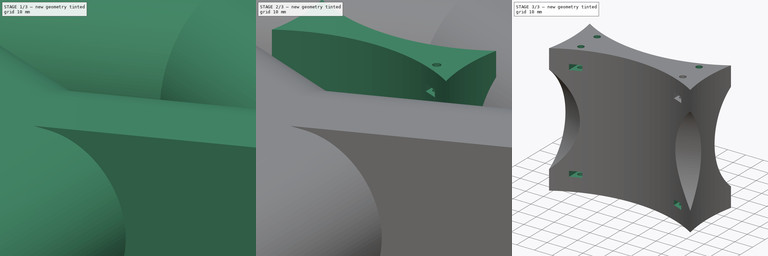
[diagram: build sequence overview — one tinted view per stage of 3, left to right]
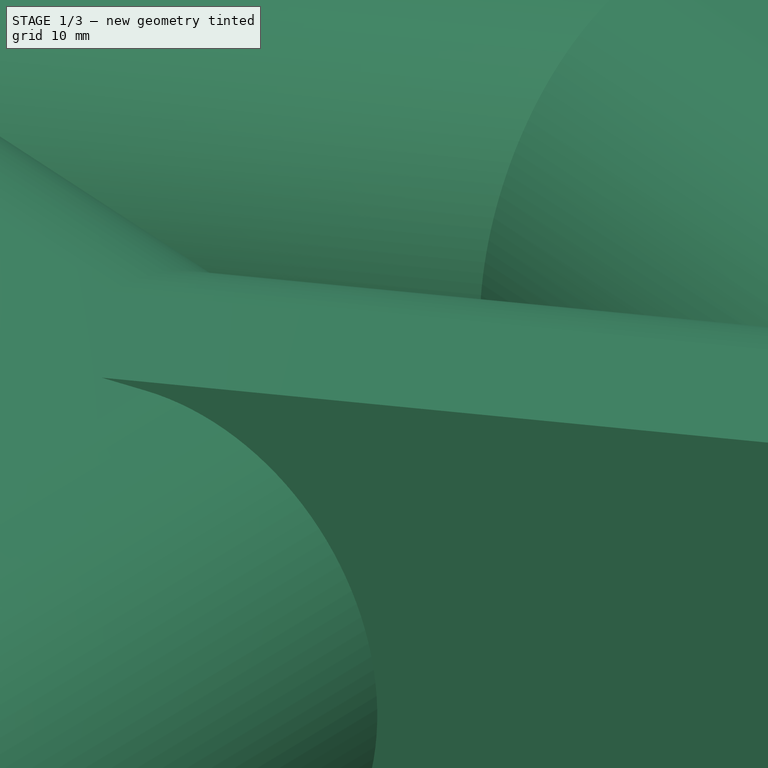
[diagram: stage 1 of 3 — iso view after this stage's code; geometry added in this stage tinted green]
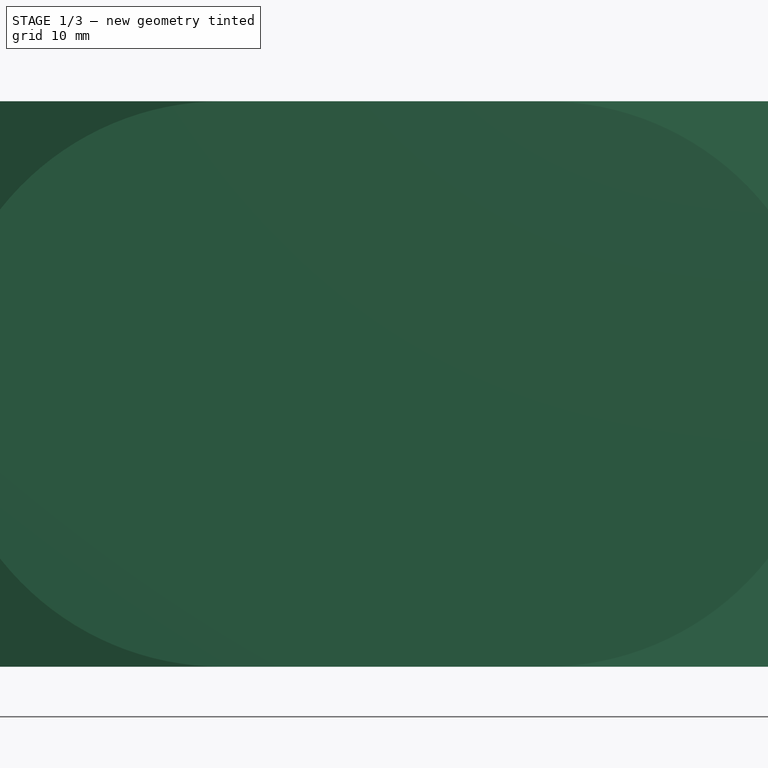
[diagram: stage 1 of 3 — front view after this stage's code; geometry added in this stage tinted green]
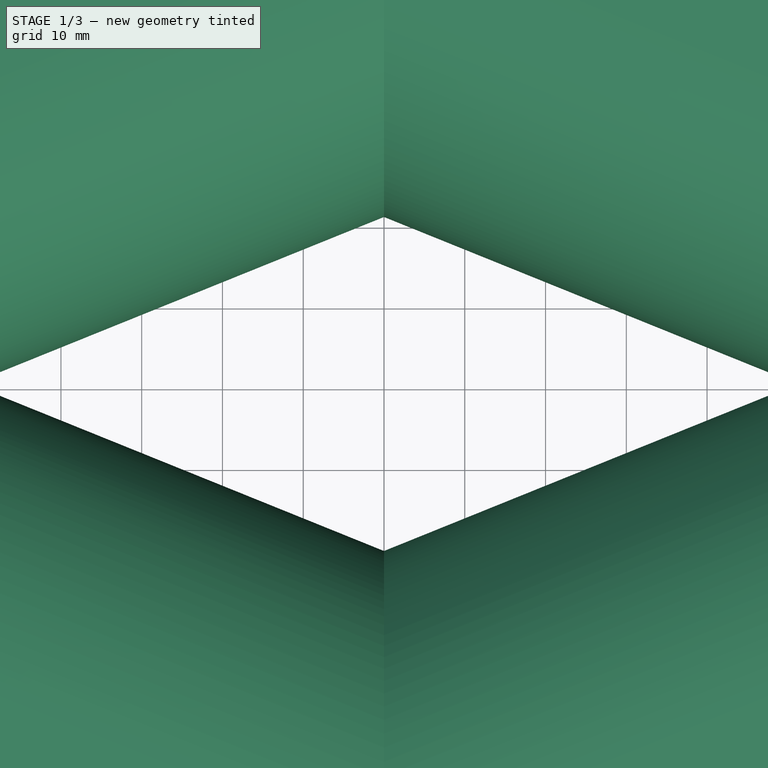
[diagram: stage 1 of 3 — top view after this stage's code; geometry added in this stage tinted green]
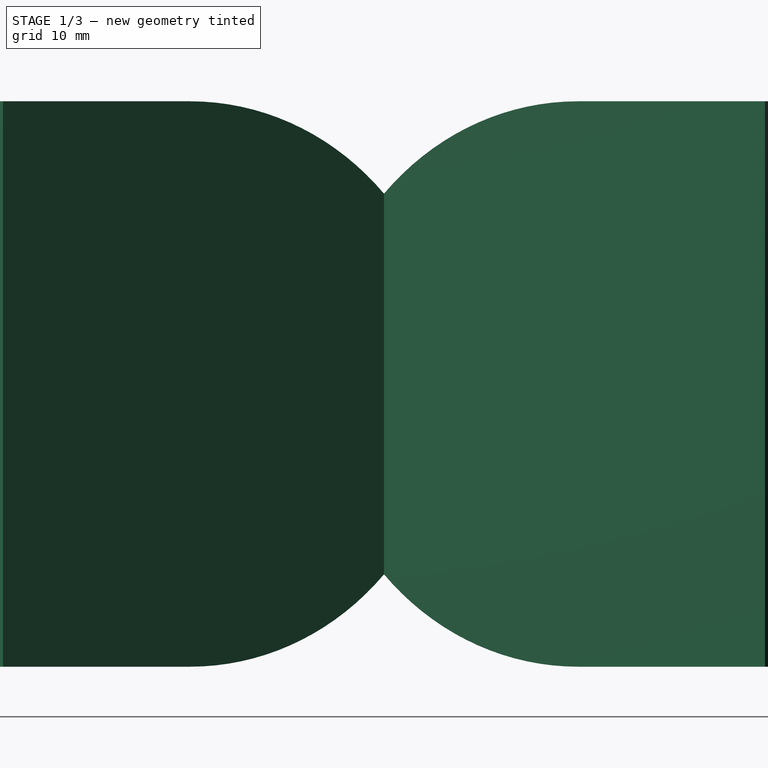
[diagram: stage 1 of 3 — right view after this stage's code; geometry added in this stage tinted green]
FCSTD DOCUMENT  (FreeCAD 0.20R29177 (Git))
Label: Art2BodyUnion_mod
License: All rights reserved
LicenseURL: http://en.wikipedia.org/wiki/All_rights_reserved
objects: PartDesign::Line×7, PartDesign::Mirrored×5, Sketcher::SketchObject×4, PartDesign::Pad×2, PartDesign::Pocket×2, PartDesign::Plane×2, PartDesign::MultiTransform×2, PartDesign::CoordinateSystem×2, PartDesign::Body×2, Spreadsheet::Sheet×1, PartDesign::PolarPattern×1, PartDesign::Boolean×1
note: 34 computed .brp shape members not serialized (recipe doc carries the construction recipe); baked Part::Feature solids carry a one-line shape summary decoded from their .brp

FEATURE [PartDesign::CoordinateSystem] LCS_Art2BodyUnion
  AttacherType = Attacher::AttachEngine3D
  MapMode = 45
  Placement = pos=(0,-3e-15,-36) rot=(0,0,1;1.5708rad)
  Support = -> [MultiTransform]
FEATURE [PartDesign::CoordinateSystem] LCS_Art2BodyUnion_1
  AttacherType = Attacher::AttachEngine3D
  MapMode = 45
  Placement = pos=(-1.3e-15,-3.3e-15,36) rot=(0,0,1;1.5708rad)
  Support = -> [MultiTransform]
FEATURE [PartDesign::Line] HoleAxis_1
  AttacherType = Attacher::AttachEngineLine
  Length = 4.79083
  MapMode = 19
  Placement = pos=(-28.5,-6.5,-28.5) rot=(0,-1,0;3.14159rad)
  ResizeMode = 1
  Support = -> [MultiTransform]
FEATURE [PartDesign::Line] HoleAxis_3
  AttacherType = Attacher::AttachEngineLine
  Length = 4.79083
  MapMode = 19
  Placement = pos=(28.5,-6.5,28.5) rot=(0,0,1;0rad)
  ResizeMode = 1
  Support = -> [MultiTransform]
FEATURE [PartDesign::Line] HoleAxis_4
  AttacherType = Attacher::AttachEngineLine
  Length = 4.79083
  MapMode = 19
  Placement = pos=(-28.5,-6.5,28.5) rot=(0,0,1;3.14159rad)
  ResizeMode = 1
  Support = -> [MultiTransform]
FEATURE [PartDesign::Line] HoleAxis_5
  AttacherType = Attacher::AttachEngineLine
  Length = 4.79083
  MapMode = 19
  Placement = pos=(28.5,6.5,28.5) rot=(0,0,1;0rad)
  ResizeMode = 1
  Support = -> [MultiTransform]
FEATURE [PartDesign::Line] HoleAxis_6
  AttacherType = Attacher::AttachEngineLine
  Length = 4.79083
  MapMode = 19
  Placement = pos=(28.5,6.5,-28.5) rot=(-1,0,0;3.14159rad)
  ResizeMode = 1
  Support = -> [MultiTransform]
FEATURE [PartDesign::Line] HoleAxis_7
  AttacherType = Attacher::AttachEngineLine
  Length = 4.79083
  MapMode = 19
  Placement = pos=(-28.5,6.5,-28.5) rot=(0,-1,0;3.14159rad)
  ResizeMode = 1
  Support = -> [MultiTransform]
FEATURE [PartDesign::Line] HoleAxis_8
  AttacherType = Attacher::AttachEngineLine
  Length = 4.79083
  MapMode = 19
  Placement = pos=(-28.5,6.5,28.5) rot=(0,0,1;3.14159rad)
  ResizeMode = 1
  Support = -> [MultiTransform]
FEATURE [PartDesign::Plane] CopyDatumPlane002
  Length = 60
  Placement = pos=(0,-80,-1.8e-14) rot=(1,0,0;1.5708rad)
  ResizeMode = 0
  Width = 60
FEATURE [Sketcher::SketchObject] Sketch004
  FullyConstrained = true
  MapMode = 5
  Placement = pos=(0,-80,-1.8e-14) rot=(1,0,0;1.5708rad)
  Support = -> [CopyDatumPlane002]
  sketch-geometry (5):
    g0: LineSegment StartX=-5 StartY=35 StartZ=0 EndX=20 EndY=35 EndZ=0
    g1: ArcOfCircle CenterX=20 CenterY=0 CenterZ=0 NormalX=0 NormalY=0 NormalZ=1 AngleXU=0 Radius=35 StartAngle=4.71239 EndAngle=7.85398
    g2: LineSegment StartX=20 StartY=-35 StartZ=0 EndX=-5 EndY=-35 EndZ=0
    g3: LineSegment StartX=-5 StartY=35 StartZ=0 EndX=-5 EndY=-35 EndZ=0
    g4: GeomPoint X=55 Y=0 Z=0
  constraints (14):
    c: Horizontal(g0)
    c: Tangent(g0,g1) = 1.5708
    c: Coincident(g1,g2)
    c: Horizontal(g2)
    c: Equal(g0,g2)
    c: Radius(g1) = 35
    c: PointOnObject(g1,g-1)
    c: Coincident(g3,g0)
    c: Coincident(g3,g2)
    c: PointOnObject(g4,g1)
    c: PointOnObject(g4,g-1)
    c: DistanceX(g-1,g4) = 55
    c: Vertical(g3)
    c: DistanceX(g0,g-1) = 5
FEATURE [PartDesign::Pad] Pad002
  Direction = (1,1,1)
  Length = 100
  Length2 = 100
  Placement = pos=(0,-80,-1.8e-14) rot=(1,0,0;1.5708rad)
  Profile = -> Sketch004
  Refine = true
  Type = 0
FEATURE [PartDesign::PolarPattern] PolarPattern001
  Angle = 112
  Axis = -> Sketch004 [V_Axis]
  Occurrences = 2
  Placement = pos=(0,-80,-1.8e-14) rot=(1,0,0;1.5708rad)
  Refine = true
FEATURE [PartDesign::Mirrored] Mirrored003
  MirrorPlane = -> Sketch004 [V_Axis]
  Placement = pos=(0,-80,-1.8e-14) rot=(1,0,0;1.5708rad)
  Refine = true
FEATURE [PartDesign::Mirrored] Mirrored004
  MirrorPlane = -> XZ_Plane004
  Placement = pos=(0,-80,-1.8e-14) rot=(1,0,0;1.5708rad)
  Refine = true
FEATURE [PartDesign::MultiTransform] MultiTransform001
  BaseFeature = -> Pad002
  Originals = -> [Pad002]
  Placement = pos=(0,-80,-1.8e-14) rot=(1,0,0;1.5708rad)
  Refine = true
  Transformations = -> [PolarPattern001,Mirrored004,Mirrored003]
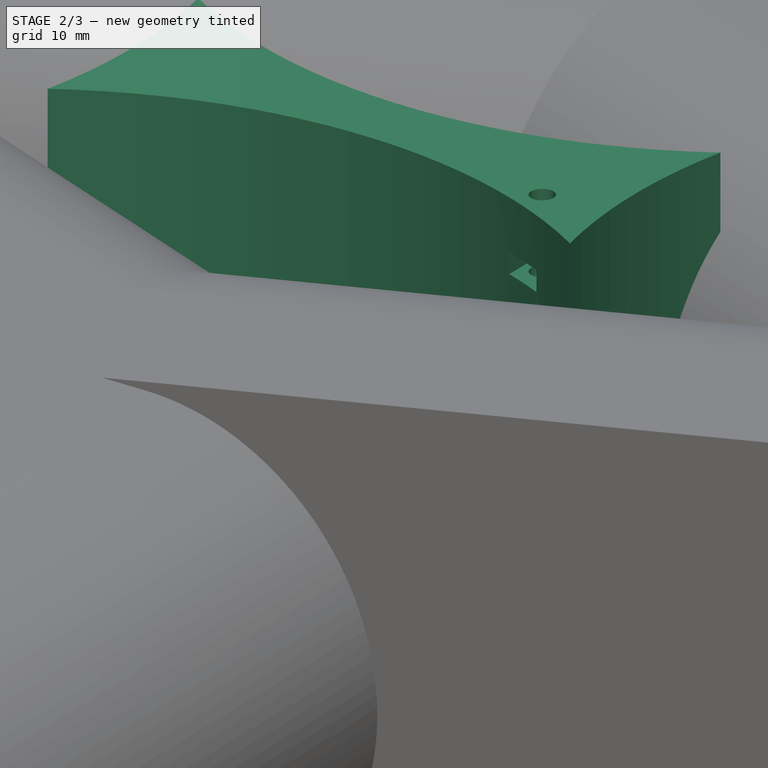
[diagram: stage 2 of 3 — iso view after this stage's code; geometry added in this stage tinted green]
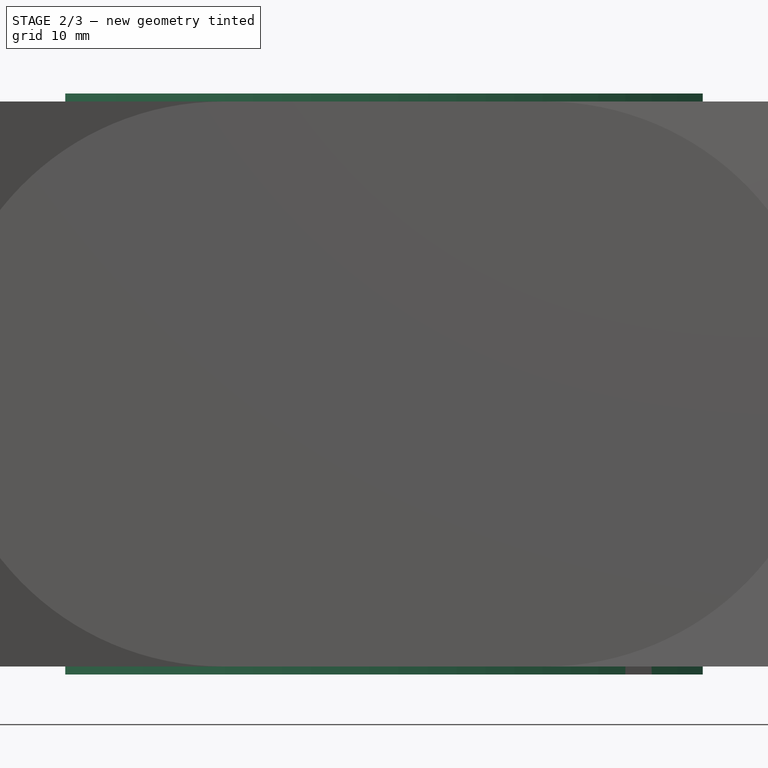
[diagram: stage 2 of 3 — front view after this stage's code; geometry added in this stage tinted green]
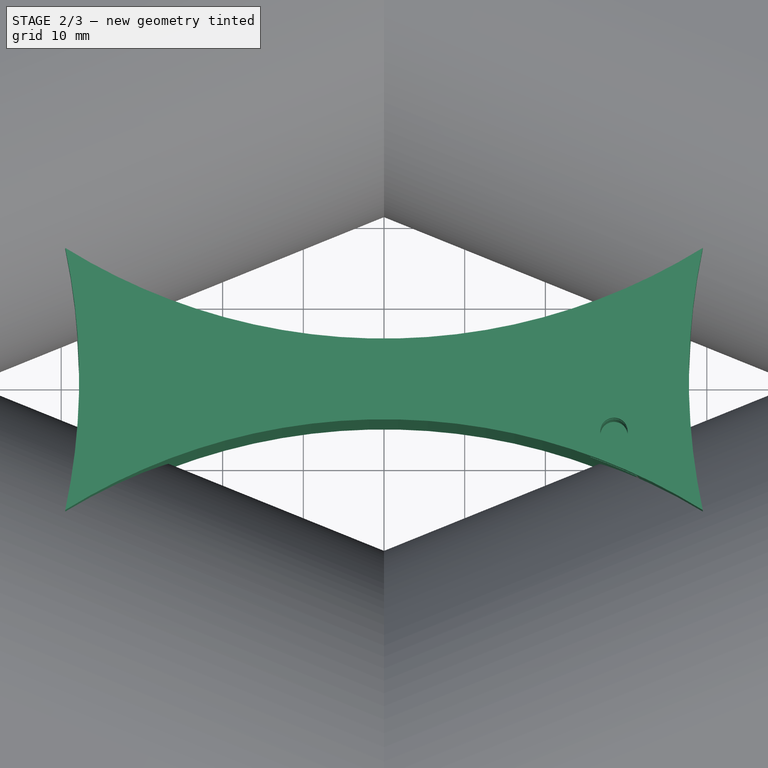
[diagram: stage 2 of 3 — top view after this stage's code; geometry added in this stage tinted green]
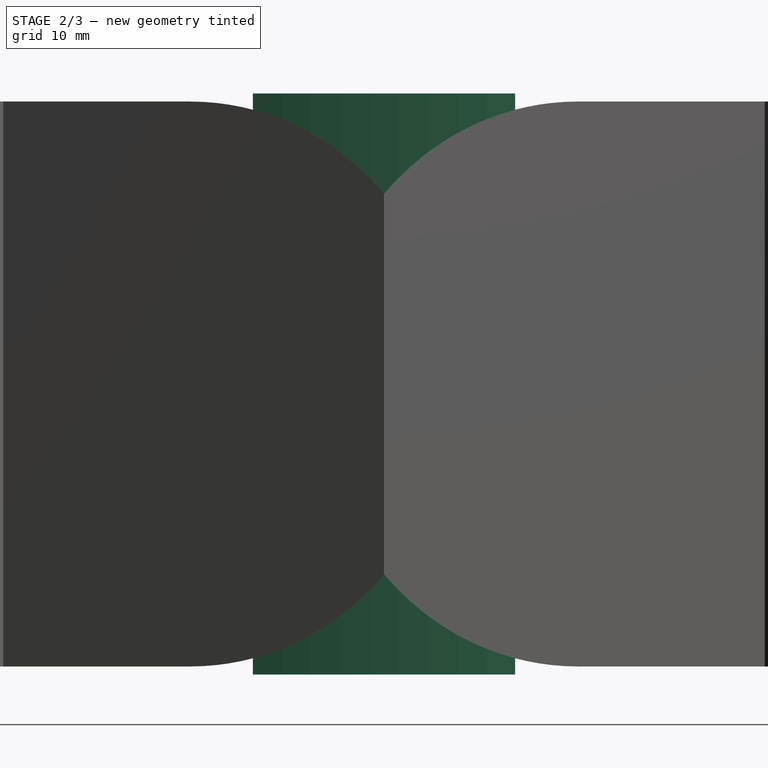
[diagram: stage 2 of 3 — right view after this stage's code; geometry added in this stage tinted green]
FEATURE [Spreadsheet::Sheet] Spreadsheet
  cells = A2=M3BoltBodyRadius; B2(M3BoltBodyRadius)=1.7; A3=M3BoltHeadRadius; B3(M3BoltHeadRadius)=2.95; A4=M3NutCircumradius; B4(M3NutCircumradius)=3.35; A5=M3NutThickness; B5(M3NutThickness)=3; A6=Bearing655ZZBodyRadius; B6(Bearing655ZZBodyRadius)=8.199999999999999
FEATURE [Sketcher::SketchObject] Sketch
  FullyConstrained = true
  MapMode = 5
  Support = -> [XY_Plane]
  sketch-geometry (4):
    g0: ArcOfCircle CenterX=0 CenterY=-80 CenterZ=0 NormalX=0 NormalY=0 NormalZ=1 AngleXU=0 Radius=75 StartAngle=1.01612 EndAngle=2.12547
    g1: ArcOfCircle CenterX=0 CenterY=80 CenterZ=0 NormalX=0 NormalY=0 NormalZ=1 AngleXU=0 Radius=75 StartAngle=4.15771 EndAngle=5.26706
    g2: ArcOfCircle CenterX=115 CenterY=0 CenterZ=0 NormalX=0 NormalY=0 NormalZ=1 AngleXU=0 Radius=77.2278 StartAngle=2.92966 EndAngle=3.35352
    g3: ArcOfCircle CenterX=-115 CenterY=0 CenterZ=0 NormalX=0 NormalY=0 NormalZ=1 AngleXU=0 Radius=77.2278 StartAngle=6.07126 EndAngle=6.49511
  constraints (14):
    c: PointOnObject(g0,g-2)
    c: Symmetric(g1,g0,g-1)
    c: DistanceY(g-1,g1) = 80
    c: PointOnObject(g2,g-1)
    c: Coincident(g2,g1)
    c: Coincident(g2,g0)
    c: Coincident(g3,g1)
    c: Coincident(g3,g0)
    c: Symmetric(g2,g3,g-2)
    c: Radius(g0) = 75
    c: DistanceX(g1,g1) = 79
    c: Equal(g1,g0)
    c: Equal(g3,g2)
    c: DistanceX(g-1,g2) = 115
FEATURE [PartDesign::Pad] Pad
  Direction = (1,1,1)
  Length = 72
  Length2 = 100
  Midplane = true
  Profile = -> Sketch
  Refine = true
  Type = 0
FEATURE [Sketcher::SketchObject] Sketch001
  FullyConstrained = true
  MapMode = 5
  Placement = pos=(0,0,36) rot=(0,0,1;0rad)
  Support = -> [Pad]
  expr: Constraints[2] = Spreadsheet.M3BoltBodyRadius
  sketch-geometry (1):
    g0: Circle CenterX=28.5 CenterY=-6.5 CenterZ=0 NormalX=0 NormalY=0 NormalZ=1 AngleXU=0 Radius=1.7
  constraints (3):
    c: DistanceX(g-1,g0) = 28.5
    c: DistanceY(g0,g-1) = 6.5
    c: Radius(g0) = 1.7
FEATURE [PartDesign::Pocket] Pocket
  BaseFeature = -> Pad
  Direction = (0,0,-1)
  Length = 30
  Length2 = 100
  Profile = -> Sketch001
  Refine = true
  Type = 0
FEATURE [PartDesign::Plane] DatumPlane
  AttachmentOffset = pos=(0,0,-9) rot=(0,0,1;0rad)
  Length = 91.5698
  MapMode = 5
  Placement = pos=(0,0,27) rot=(0,0,1;0rad)
  ResizeMode = 0
  Support = -> [Pocket]
  Width = 62.5698
FEATURE [Sketcher::SketchObject] Sketch002
  ExternalGeometry = -> [Pocket]
  FullyConstrained = true
  MapMode = 5
  Placement = pos=(0,0,27) rot=(0,0,1;0rad)
  Support = -> [DatumPlane]
  expr: Constraints[27] = Spreadsheet.M3NutCircumradius
  sketch-geometry (10):
    g0: LineSegment StartX=28.5 StartY=-3.15 StartZ=0 EndX=25.5988 EndY=-4.825 EndZ=0
    g1: LineSegment StartX=25.5988 StartY=-4.825 StartZ=0 EndX=25.5988 EndY=-8.175 EndZ=0
    g2: LineSegment StartX=25.5988 StartY=-8.175 StartZ=0 EndX=28.5 EndY=-9.85 EndZ=0
    g3: LineSegment StartX=28.5 StartY=-9.85 StartZ=0 EndX=31.4012 EndY=-8.175 EndZ=0
    g4: LineSegment StartX=31.4012 StartY=-8.175 StartZ=0 EndX=31.4012 EndY=-4.825 EndZ=0
    g5: LineSegment StartX=31.4012 StartY=-4.825 StartZ=0 EndX=28.5 EndY=-3.15 EndZ=0
    g6: Circle CenterX=28.5 CenterY=-6.5 CenterZ=0 NormalX=0 NormalY=0 NormalZ=1 AngleXU=0 Radius=3.35
    g7: LineSegment StartX=25.5988 StartY=-4.825 StartZ=0 EndX=25.5988 EndY=-14.825 EndZ=0
    g8: LineSegment StartX=25.5988 StartY=-14.825 StartZ=0 EndX=31.4012 EndY=-14.825 EndZ=0
    g9: LineSegment StartX=31.4012 StartY=-14.825 StartZ=0 EndX=31.4012 EndY=-4.825 EndZ=0
  constraints (24):
    c: Coincident(g0,g1)
    c: Coincident(g1,g2)
    c: Coincident(g2,g3)
    c: Coincident(g3,g4)
    c: Coincident(g4,g5)
    c: Coincident(g5,g0)
    c: Equal(g0, g1-g5) x5
    c: PointOnObject(g0,g6)
    c: PointOnObject(g1,g6)
    c: PointOnObject(g2,g6)
    c: PointOnObject(g3,g6)
    c: PointOnObject(g4,g6)
    c: PointOnObject(g5,g6)
    c: Coincident(g6,g-3)
    c: Vertical(g4)
    c: Coincident(g0,g7)
    c: Vertical(g7)
    c: Coincident(g7,g8)
    c: Horizontal(g8)
    c: Coincident(g8,g9)
    c: Coincident(g9,g5)
    c: Vertical(g9)
    c: DistanceY(g9,g9) = 10
    c: Radius(g6) = 3.35
FEATURE [PartDesign::Pocket] Pocket001
  BaseFeature = -> Pocket
  Direction = (0,0,-1)
  Length = 3
  Length2 = 100
  Midplane = true
  Profile = -> Sketch002
  Refine = true
  Type = 0
  expr: Length = Spreadsheet.M3NutThickness
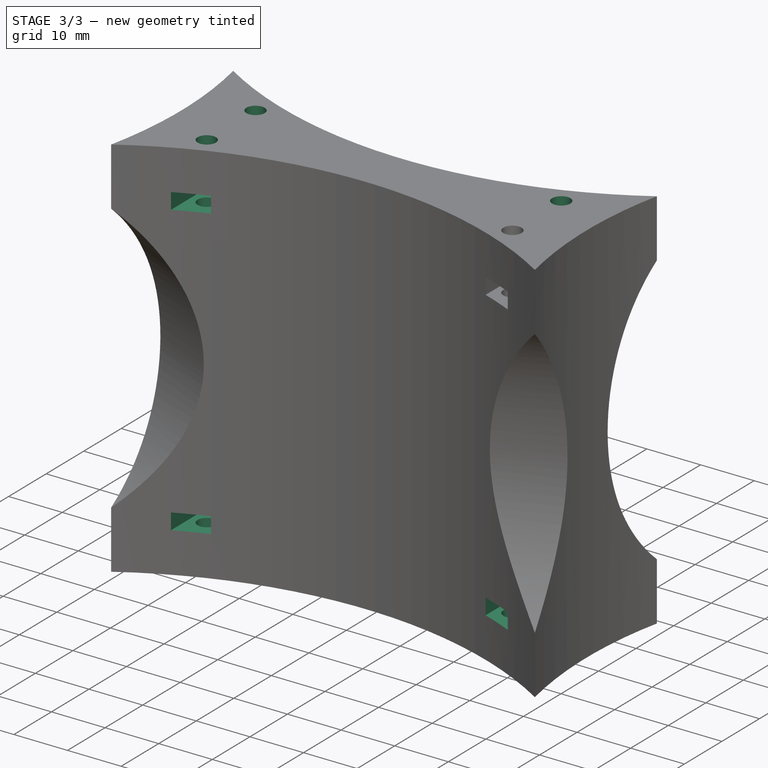
[diagram: stage 3 of 3 — iso view after this stage's code; geometry added in this stage tinted green]
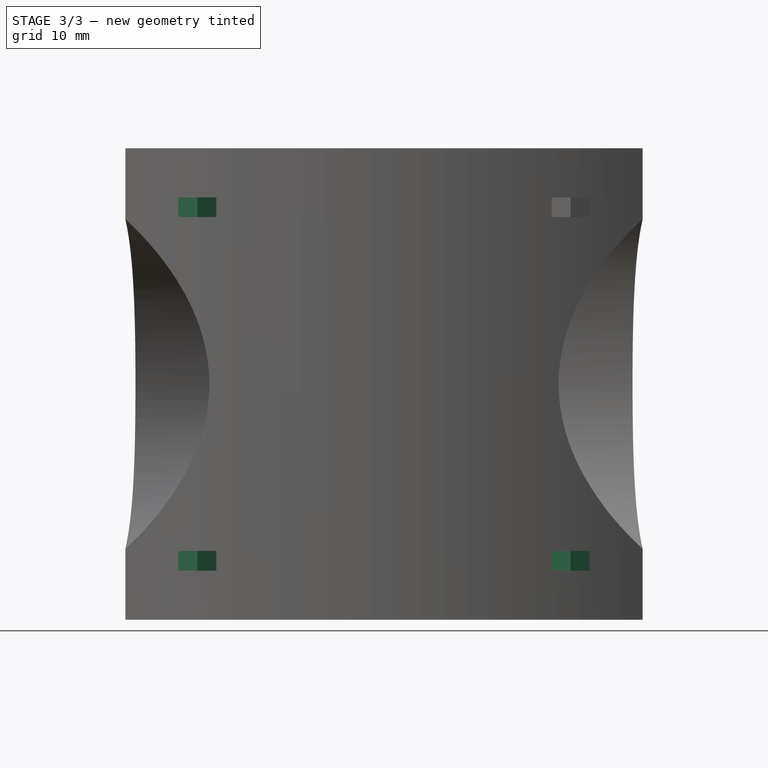
[diagram: stage 3 of 3 — front view after this stage's code; geometry added in this stage tinted green]
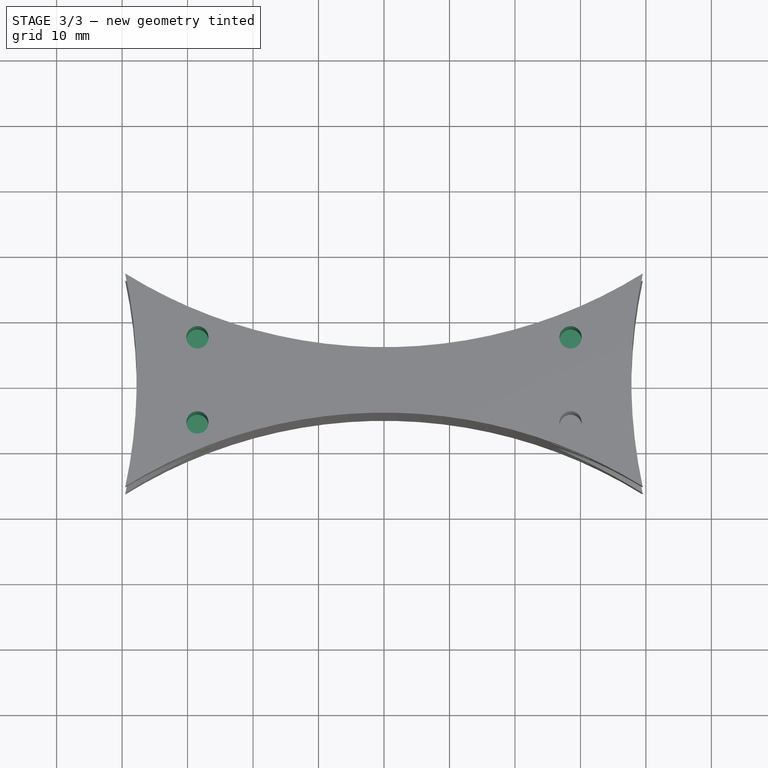
[diagram: stage 3 of 3 — top view after this stage's code; geometry added in this stage tinted green]
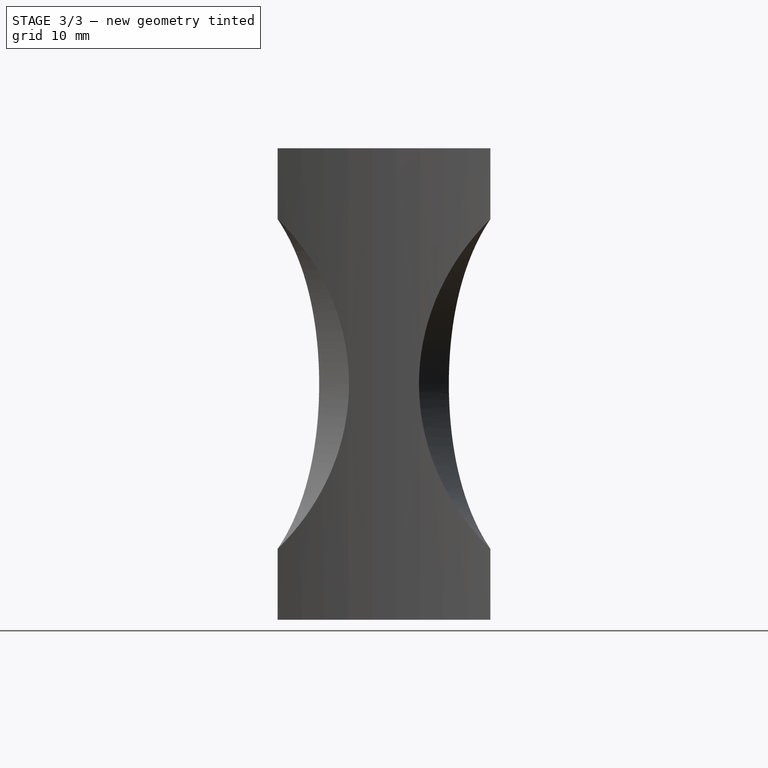
[diagram: stage 3 of 3 — right view after this stage's code; geometry added in this stage tinted green]
FEATURE [PartDesign::Mirrored] Mirrored
  MirrorPlane = -> XZ_Plane
  Refine = true
FEATURE [PartDesign::Mirrored] Mirrored001
  MirrorPlane = -> YZ_Plane
  Refine = true
FEATURE [PartDesign::Mirrored] Mirrored002
  MirrorPlane = -> XY_Plane
  Refine = true
FEATURE [PartDesign::MultiTransform] MultiTransform
  BaseFeature = -> Pocket001
  Originals = -> [Pocket001,Pocket]
  Refine = true
  Transformations = -> [Mirrored,Mirrored001,Mirrored002]
FEATURE [PartDesign::Body] Body004
  Group = -> [CopyDatumPlane002,Sketch004,Pad002,MultiTransform001,PolarPattern001,Mirrored003,Mirrored004]
  Origin = -> Origin004
  Tip = -> MultiTransform001
FEATURE [PartDesign::Boolean] Boolean
  BaseFeature = -> MultiTransform
  Group = -> [Body004]
  Refine = true
  Type = 1
FEATURE [PartDesign::Body] Body  label="Art2BodyUnion"
  Group = -> [Sketch,Pad,Sketch001,Pocket,DatumPlane,Sketch002,Pocket001,MultiTransform,Mirrored,Mirrored001,Mirrored002,LCS_Art2BodyUnion,LCS_Art2BodyUnion_1,HoleAxis_1,HoleAxis_3,HoleAxis_4,HoleAxis_5,HoleAxis_6,HoleAxis_7,HoleAxis_8,Boolean]
  Origin = -> Origin
  Tip = -> Boolean
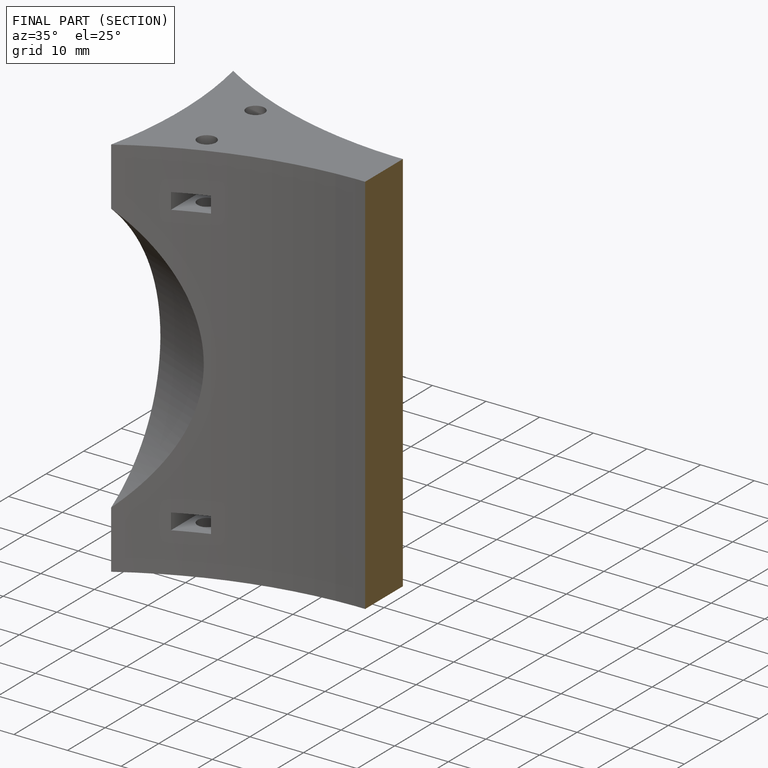
[diagram: finished part — half-section view (interior)]
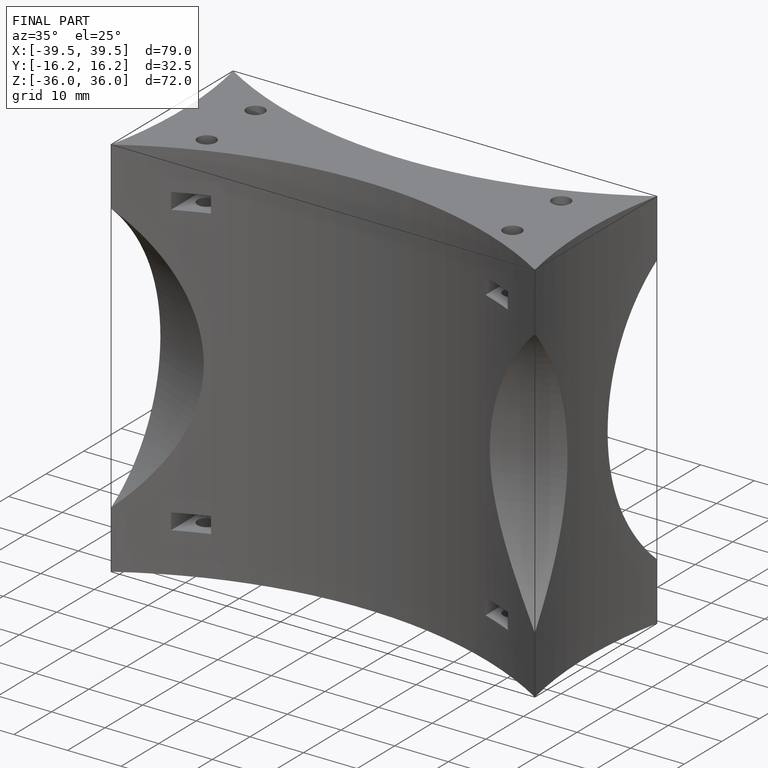
[diagram: finished part — iso view with bounding-box wireframe]
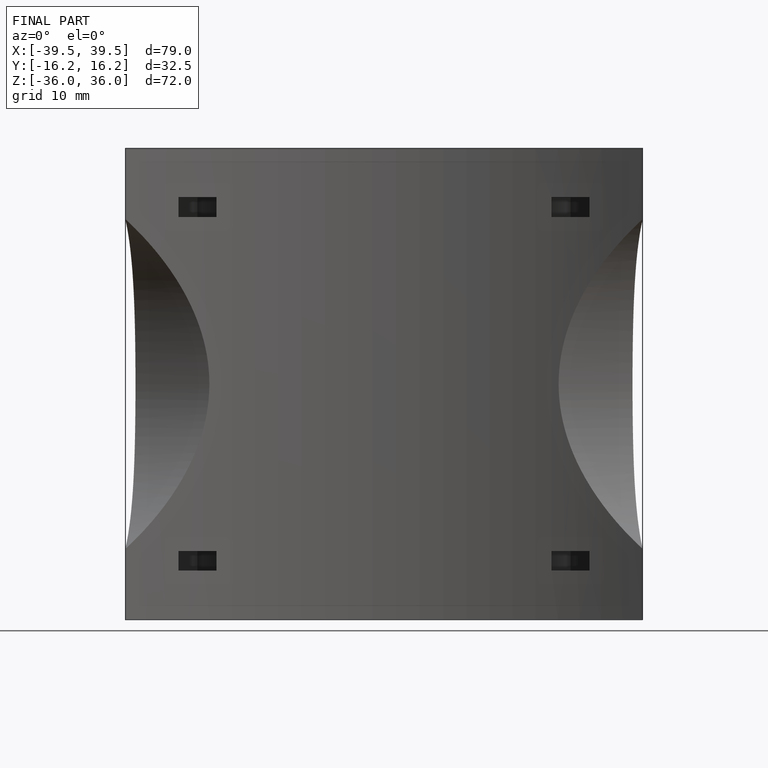
[diagram: finished part — front view with bounding-box wireframe]
